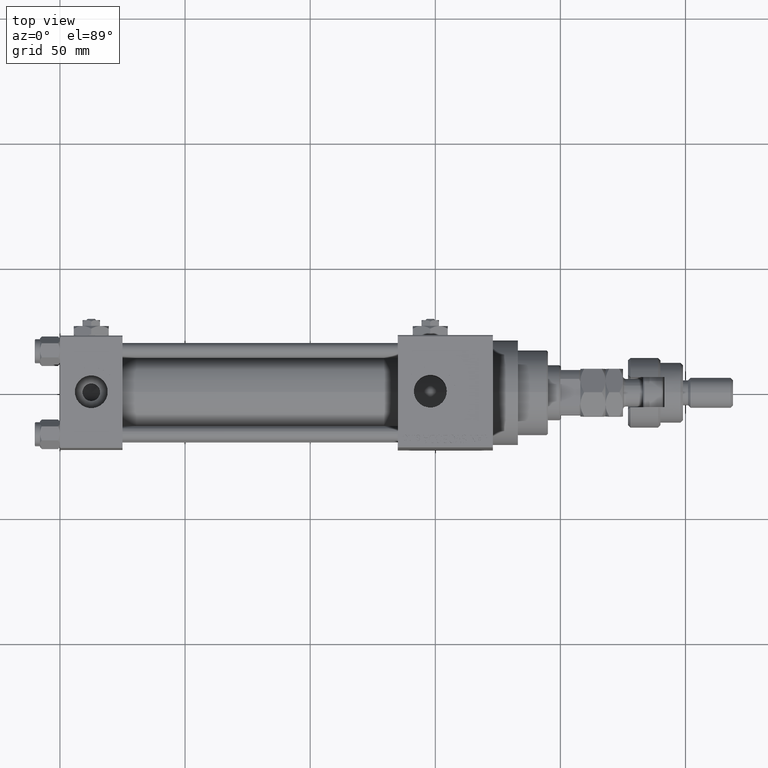
[diagram: clean part render]
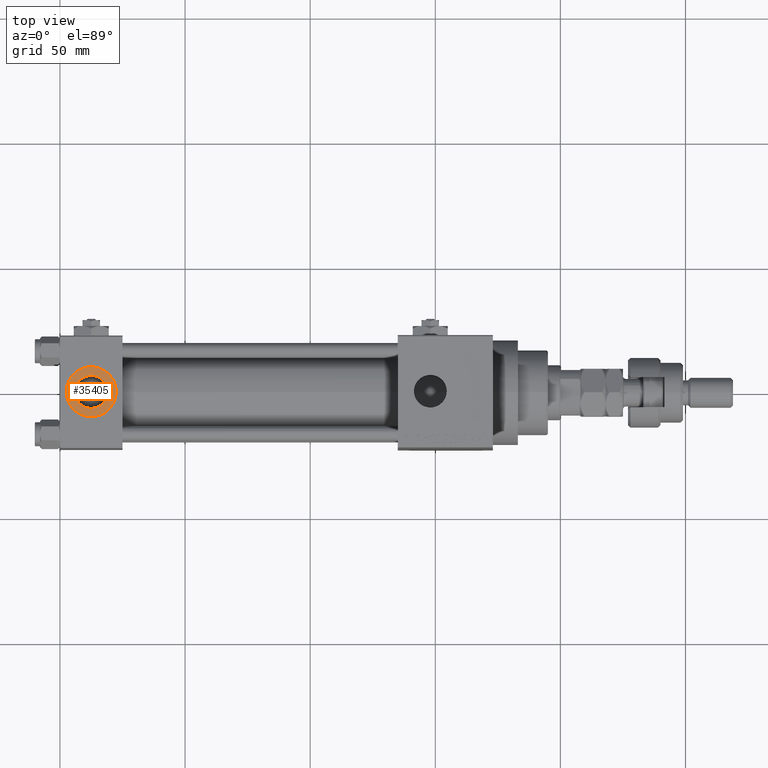
[diagram: same view with one face highlighted and labeled with its STEP entity id]
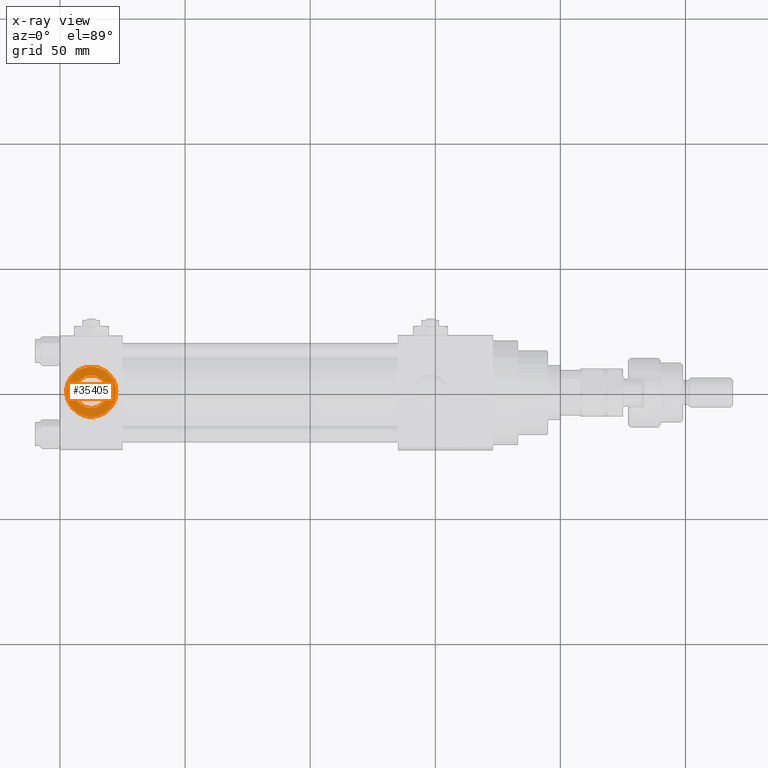
[diagram: x-ray of the same camera — body ghosted, the highlighted face saturated]
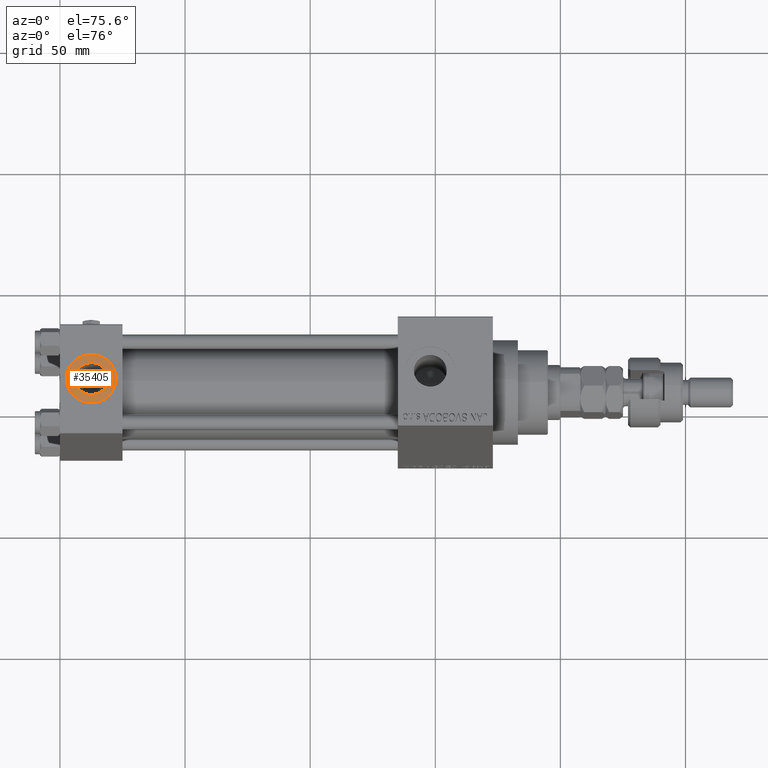
[diagram: same view with one face highlighted and labeled with its STEP entity id]
A machine part, top view. The second image highlights one B-rep face of the part: STEP entity #35405.
The next image is the same camera in x-ray: the body ghosted, the highlighted face saturated — about 0% of this face is hidden behind the body in this view.
A second angle (auxiliary view) of the same face is appended — the face is thin or edge-on in the first view.
In plain terms, the highlighted planar face has unit normal (0, 0, 1).
Its self-contained STEP definition (entity closure, byte-faithful):
#417 = EDGE_LOOP ( 'NONE', ( #42875, #3941 ) ) ;
#751 = CARTESIAN_POINT ( 'NONE',  ( 12.50000000000000000, -1.734723475976807094E-15, 22.30000000000000071 ) ) ;
#1265 = CIRCLE ( 'NONE', #38241, 9.999999999999998224 ) ;
#1802 = DIRECTION ( 'NONE',  ( 0.000000000000000000, 0.000000000000000000, 1.000000000000000000 ) ) ;
#3547 = VERTEX_POINT ( 'NONE', #49307 ) ;
#3773 = CARTESIAN_POINT ( 'NONE',  ( 19.07999999999999829, -1.734723475976807094E-15, 22.30000000000000071 ) ) ;
#3941 = ORIENTED_EDGE ( 'NONE', *, *, #35351, .F. ) ;
#5487 = CARTESIAN_POINT ( 'NONE',  ( 12.50000000000000000, -1.734723475976807094E-15, 22.30000000000000071 ) ) ;
#5638 = CARTESIAN_POINT ( 'NONE',  ( 22.50000000000000000, -1.734723475976807094E-15, 22.30000000000000071 ) ) ;
#7757 = CIRCLE ( 'NONE', #25444, 6.579999999999999183 ) ;
#9893 = ORIENTED_EDGE ( 'NONE', *, *, #18614, .T. ) ;
#12854 = FACE_BOUND ( 'NONE', #417, .T. ) ;
#13393 = FACE_OUTER_BOUND ( 'NONE', #40477, .T. ) ;
#17061 = CARTESIAN_POINT ( 'NONE',  ( 12.50000000000000000, -1.734723475976807094E-15, 22.30000000000000071 ) ) ;
#17351 = DIRECTION ( 'NONE',  ( 0.000000000000000000, 0.000000000000000000, 1.000000000000000000 ) ) ;
#17748 = DIRECTION ( 'NONE',  ( 0.000000000000000000, 0.000000000000000000, 1.000000000000000000 ) ) ;
#17819 = DIRECTION ( 'NONE',  ( 1.000000000000000000, 0.000000000000000000, 0.000000000000000000 ) ) ;
#18614 = EDGE_CURVE ( 'NONE', #49419, #37857, #1265, .T. ) ;
#20781 = EDGE_CURVE ( 'NONE', #37857, #49419, #45030, .T. ) ;
#22208 = CARTESIAN_POINT ( 'NONE',  ( 12.50000000000000000, -1.734723475976807094E-15, 22.30000000000000071 ) ) ;
#23275 = ORIENTED_EDGE ( 'NONE', *, *, #20781, .T. ) ;
#25444 = AXIS2_PLACEMENT_3D ( 'NONE', #17061, #33104, #49133 ) ;
#27942 = CIRCLE ( 'NONE', #51424, 6.579999999999999183 ) ;
#28643 = PLANE ( 'NONE',  #42236 ) ;
#33104 = DIRECTION ( 'NONE',  ( 0.000000000000000000, 0.000000000000000000, 1.000000000000000000 ) ) ;
#34543 = EDGE_CURVE ( 'NONE', #51631, #3547, #7757, .T. ) ;
#34962 = CARTESIAN_POINT ( 'NONE',  ( 2.500000000000003997, -5.100766768294543310E-16, 22.30000000000000071 ) ) ;
#35351 = EDGE_CURVE ( 'NONE', #3547, #51631, #27942, .T. ) ;
#35405 = ADVANCED_FACE ( 'NONE', ( #12854, #13393 ), #28643, .T. ) ;
#37857 = VERTEX_POINT ( 'NONE', #5638 ) ;
#38043 = CARTESIAN_POINT ( 'NONE',  ( 12.50000000000000000, -1.734723475976807094E-15, 22.30000000000000071 ) ) ;
#38241 = AXIS2_PLACEMENT_3D ( 'NONE', #22208, #17748, #46121 ) ;
#40477 = EDGE_LOOP ( 'NONE', ( #23275, #9893 ) ) ;
#42236 = AXIS2_PLACEMENT_3D ( 'NONE', #5487, #1802, #44657 ) ;
#42875 = ORIENTED_EDGE ( 'NONE', *, *, #34543, .F. ) ;
#44147 = AXIS2_PLACEMENT_3D ( 'NONE', #38043, #49357, #17819 ) ;
#44657 = DIRECTION ( 'NONE',  ( 1.000000000000000000, 0.000000000000000000, -0.000000000000000000 ) ) ;
#45030 = CIRCLE ( 'NONE', #44147, 9.999999999999998224 ) ;
#46121 = DIRECTION ( 'NONE',  ( 1.000000000000000000, 0.000000000000000000, 0.000000000000000000 ) ) ;
#49133 = DIRECTION ( 'NONE',  ( 1.000000000000000000, 0.000000000000000000, 0.000000000000000000 ) ) ;
#49138 = DIRECTION ( 'NONE',  ( 1.000000000000000000, 0.000000000000000000, 0.000000000000000000 ) ) ;
#49307 = CARTESIAN_POINT ( 'NONE',  ( 5.920000000000002593, -9.289058821378490386E-16, 22.30000000000000071 ) ) ;
#49357 = DIRECTION ( 'NONE',  ( 0.000000000000000000, 0.000000000000000000, 1.000000000000000000 ) ) ;
#49419 = VERTEX_POINT ( 'NONE', #34962 ) ;
#51424 = AXIS2_PLACEMENT_3D ( 'NONE', #751, #17351, #49138 ) ;
#51631 = VERTEX_POINT ( 'NONE', #3773 ) ;